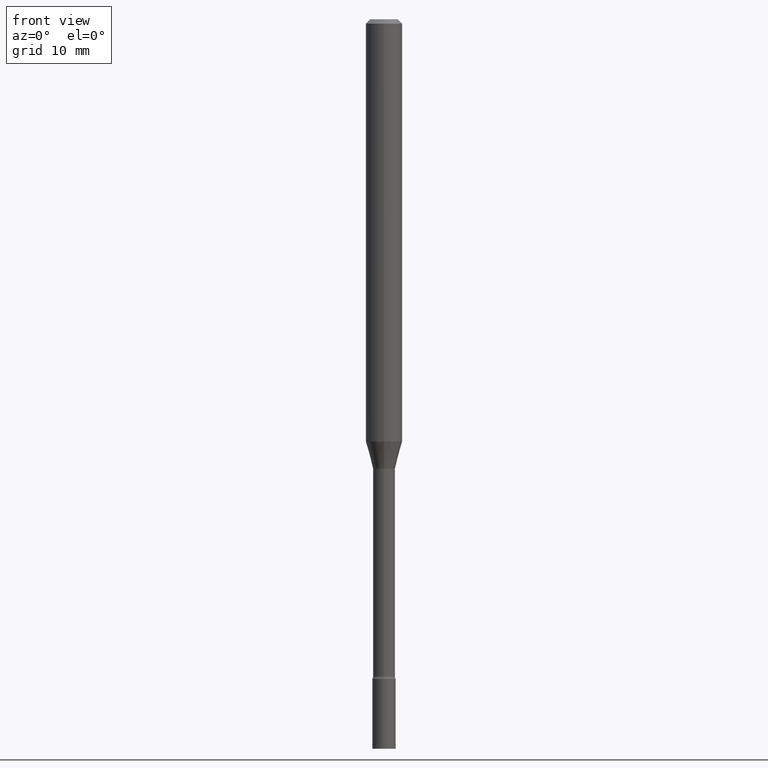
[diagram: clean part render]
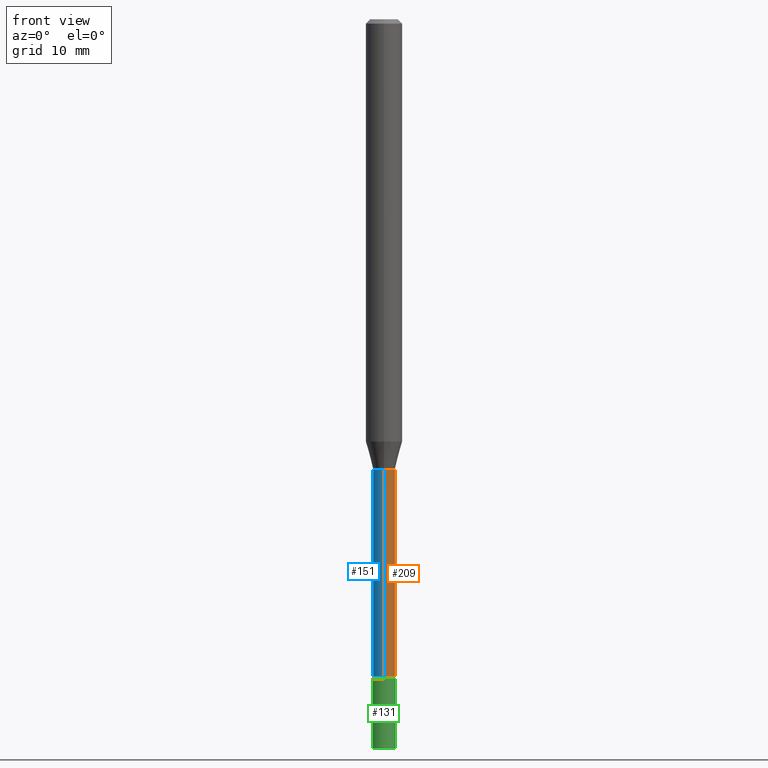
[diagram: same view with three faces highlighted in distinct colors, each labeled with its STEP entity id]
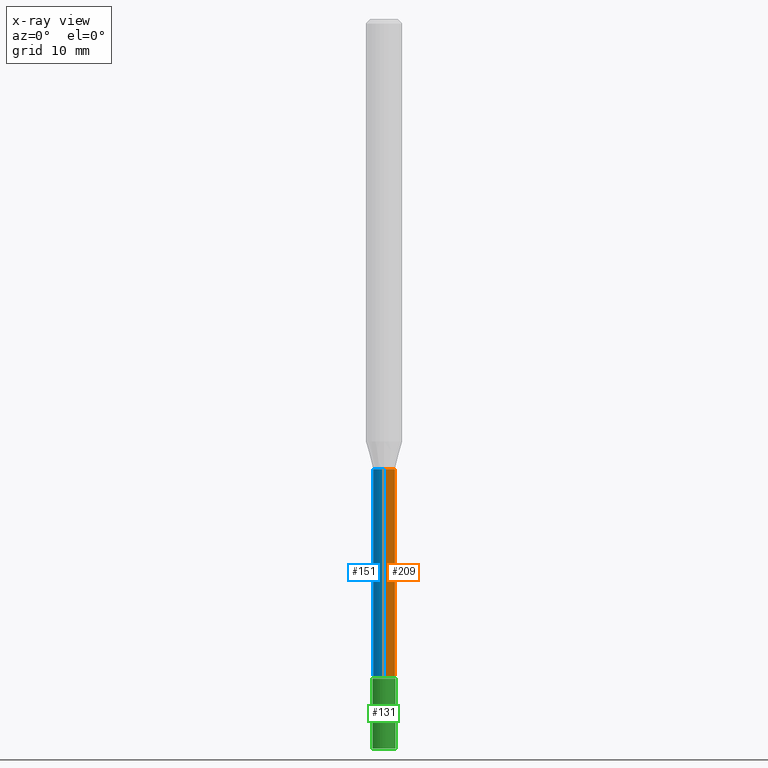
[diagram: x-ray of the same camera — body ghosted, the three highlighted faces saturated]
A machine part, front view with three faces highlighted in distinct colors.
The next image is the same camera in x-ray (body ghosted, the three faces saturated) — at least one of them is partly hidden behind the body in this view.
Their STEP definitions:

[orange] entity #209 — the highlighted cylindrical surface (edge-blend (fillet) strip) has radius 0.955 mm, axis along (-0, 0, 1).
#20 = CARTESIAN_POINT ( 'NONE',  ( -2.625593966809491224E-16, -0.03760000000000795345, -2.251861204020249918 ) ) ;
#37 = CARTESIAN_POINT ( 'NONE',  ( 2.671640686458530486E-16, 0.03759999999999462383, -1.541974787463810781 ) ) ;
#69 = VERTEX_POINT ( 'NONE', #355 ) ;
#91 = CYLINDRICAL_SURFACE ( 'NONE', #298, 0.03760000000000005005 ) ;
#97 = LINE ( 'NONE', #299, #120 ) ;
#104 = AXIS2_PLACEMENT_3D ( 'NONE', #384, #314, #344 ) ;
#112 = VERTEX_POINT ( 'NONE', #121 ) ;
#120 = VECTOR ( 'NONE', #466, 39.37007874015748143 ) ;
#121 = CARTESIAN_POINT ( 'NONE',  ( 2.756905814749742978E-16, 0.03759999999999222992, -2.251861204020249918 ) ) ;
#123 = DIRECTION ( 'NONE',  ( -2.445478384323493564E-29, 3.491467622403864625E-15, 1.000000000000000000 ) ) ;
#130 = EDGE_LOOP ( 'NONE', ( #413, #149, #256, #180 ) ) ;
#138 = DIRECTION ( 'NONE',  ( -2.445478384323493564E-29, 3.491467622403864625E-15, 1.000000000000000000 ) ) ;
#149 = ORIENTED_EDGE ( 'NONE', *, *, #174, .T. ) ;
#174 = EDGE_CURVE ( 'NONE', #112, #500, #290, .T. ) ;
#177 = CIRCLE ( 'NONE', #281, 0.03760000000000000148 ) ;
#180 = ORIENTED_EDGE ( 'NONE', *, *, #437, .F. ) ;
#209 = ADVANCED_FACE ( 'NONE', ( #450 ), #91, .T. ) ;
#213 = VECTOR ( 'NONE', #123, 39.37007874015748143 ) ;
#256 = ORIENTED_EDGE ( 'NONE', *, *, #356, .F. ) ;
#259 = CARTESIAN_POINT ( 'NONE',  ( 2.671640686457979762E-16, 0.03760000000000005005, -1.312791826023854775E-16 ) ) ;
#281 = AXIS2_PLACEMENT_3D ( 'NONE', #459, #138, #493 ) ;
#290 = LINE ( 'NONE', #259, #213 ) ;
#291 = EDGE_CURVE ( 'NONE', #429, #112, #431, .T. ) ;
#298 = AXIS2_PLACEMENT_3D ( 'NONE', #490, #334, #489 ) ;
#299 = CARTESIAN_POINT ( 'NONE',  ( -2.625593966810039482E-16, -0.03760000000000005005, 1.312791826023854775E-16 ) ) ;
#314 = DIRECTION ( 'NONE',  ( -2.445478384323493564E-29, 3.491467622403864625E-15, 1.000000000000000000 ) ) ;
#334 = DIRECTION ( 'NONE',  ( -2.445478384323493564E-29, 3.491467622403864625E-15, 1.000000000000000000 ) ) ;
#344 = DIRECTION ( 'NONE',  ( -6.982962677686265133E-15, -1.000000000000000000, 0.000000000000000000 ) ) ;
#355 = CARTESIAN_POINT ( 'NONE',  ( -2.625593966809658857E-16, -0.03760000000000538606, -1.541974787463810781 ) ) ;
#356 = EDGE_CURVE ( 'NONE', #69, #500, #177, .T. ) ;
#384 = CARTESIAN_POINT ( 'NONE',  ( 5.506877898928198325E-29, -7.862300483984086677E-15, -2.251861204020249918 ) ) ;
#413 = ORIENTED_EDGE ( 'NONE', *, *, #291, .T. ) ;
#429 = VERTEX_POINT ( 'NONE', #20 ) ;
#431 = CIRCLE ( 'NONE', #104, 0.03760000000000009168 ) ;
#437 = EDGE_CURVE ( 'NONE', #429, #69, #97, .T. ) ;
#450 = FACE_OUTER_BOUND ( 'NONE', #130, .T. ) ;
#459 = CARTESIAN_POINT ( 'NONE',  ( 3.770866011914561974E-29, -5.383755044992975831E-15, -1.541974787463810781 ) ) ;
#466 = DIRECTION ( 'NONE',  ( -2.445478384323493564E-29, 3.491467622403864625E-15, 1.000000000000000000 ) ) ;
#489 = DIRECTION ( 'NONE',  ( -6.982962677686265922E-15, -1.000000000000000000, 3.491467622403864625E-15 ) ) ;
#490 = CARTESIAN_POINT ( 'NONE',  ( 0.000000000000000000, 0.000000000000000000, 0.000000000000000000 ) ) ;
#493 = DIRECTION ( 'NONE',  ( -6.982962677686265922E-15, -1.000000000000000000, 0.000000000000000000 ) ) ;
#500 = VERTEX_POINT ( 'NONE', #37 ) ;

[blue] entity #151 — the highlighted cylindrical surface (edge-blend (fillet) strip) has radius 0.955 mm, axis along (-0, 0, 1).
#13 = CYLINDRICAL_SURFACE ( 'NONE', #507, 0.03760000000000005005 ) ;
#20 = CARTESIAN_POINT ( 'NONE',  ( -2.625593966809491224E-16, -0.03760000000000795345, -2.251861204020249918 ) ) ;
#22 = ORIENTED_EDGE ( 'NONE', *, *, #174, .F. ) ;
#37 = CARTESIAN_POINT ( 'NONE',  ( 2.671640686458530486E-16, 0.03759999999999462383, -1.541974787463810781 ) ) ;
#69 = VERTEX_POINT ( 'NONE', #355 ) ;
#83 = ORIENTED_EDGE ( 'NONE', *, *, #193, .T. ) ;
#86 = DIRECTION ( 'NONE',  ( -2.445478384323493564E-29, 3.491467622403864625E-15, 1.000000000000000000 ) ) ;
#93 = FACE_OUTER_BOUND ( 'NONE', #208, .T. ) ;
#97 = LINE ( 'NONE', #299, #120 ) ;
#112 = VERTEX_POINT ( 'NONE', #121 ) ;
#120 = VECTOR ( 'NONE', #466, 39.37007874015748143 ) ;
#121 = CARTESIAN_POINT ( 'NONE',  ( 2.756905814749742978E-16, 0.03759999999999222992, -2.251861204020249918 ) ) ;
#123 = DIRECTION ( 'NONE',  ( -2.445478384323493564E-29, 3.491467622403864625E-15, 1.000000000000000000 ) ) ;
#124 = CARTESIAN_POINT ( 'NONE',  ( 0.000000000000000000, 0.000000000000000000, 0.000000000000000000 ) ) ;
#151 = ADVANCED_FACE ( 'NONE', ( #93 ), #13, .T. ) ;
#170 = DIRECTION ( 'NONE',  ( -6.982962677686265922E-15, -1.000000000000000000, 3.491467622403864625E-15 ) ) ;
#174 = EDGE_CURVE ( 'NONE', #112, #500, #290, .T. ) ;
#193 = EDGE_CURVE ( 'NONE', #112, #429, #310, .T. ) ;
#196 = AXIS2_PLACEMENT_3D ( 'NONE', #371, #219, #289 ) ;
#208 = EDGE_LOOP ( 'NONE', ( #22, #83, #263, #400 ) ) ;
#213 = VECTOR ( 'NONE', #123, 39.37007874015748143 ) ;
#219 = DIRECTION ( 'NONE',  ( -2.445478384323493564E-29, 3.491467622403864625E-15, 1.000000000000000000 ) ) ;
#243 = EDGE_CURVE ( 'NONE', #500, #69, #399, .T. ) ;
#259 = CARTESIAN_POINT ( 'NONE',  ( 2.671640686457979762E-16, 0.03760000000000005005, -1.312791826023854775E-16 ) ) ;
#263 = ORIENTED_EDGE ( 'NONE', *, *, #437, .T. ) ;
#289 = DIRECTION ( 'NONE',  ( -6.982962677686265922E-15, -1.000000000000000000, 0.000000000000000000 ) ) ;
#290 = LINE ( 'NONE', #259, #213 ) ;
#294 = CARTESIAN_POINT ( 'NONE',  ( 5.506877898928198325E-29, -7.862300483984086677E-15, -2.251861204020249918 ) ) ;
#299 = CARTESIAN_POINT ( 'NONE',  ( -2.625593966810039482E-16, -0.03760000000000005005, 1.312791826023854775E-16 ) ) ;
#310 = CIRCLE ( 'NONE', #510, 0.03760000000000009168 ) ;
#337 = DIRECTION ( 'NONE',  ( -6.982962677686265133E-15, -1.000000000000000000, 0.000000000000000000 ) ) ;
#355 = CARTESIAN_POINT ( 'NONE',  ( -2.625593966809658857E-16, -0.03760000000000538606, -1.541974787463810781 ) ) ;
#371 = CARTESIAN_POINT ( 'NONE',  ( 3.770866011914561974E-29, -5.383755044992975831E-15, -1.541974787463810781 ) ) ;
#399 = CIRCLE ( 'NONE', #196, 0.03760000000000000148 ) ;
#400 = ORIENTED_EDGE ( 'NONE', *, *, #243, .F. ) ;
#409 = DIRECTION ( 'NONE',  ( -2.445478384323493564E-29, 3.491467622403864625E-15, 1.000000000000000000 ) ) ;
#429 = VERTEX_POINT ( 'NONE', #20 ) ;
#437 = EDGE_CURVE ( 'NONE', #429, #69, #97, .T. ) ;
#466 = DIRECTION ( 'NONE',  ( -2.445478384323493564E-29, 3.491467622403864625E-15, 1.000000000000000000 ) ) ;
#500 = VERTEX_POINT ( 'NONE', #37 ) ;
#507 = AXIS2_PLACEMENT_3D ( 'NONE', #124, #86, #170 ) ;
#510 = AXIS2_PLACEMENT_3D ( 'NONE', #294, #409, #337 ) ;

[green] entity #131 — the highlighted cylindrical surface (edge-blend (fillet) strip) has radius 1.016 mm, axis along (-0, 0, 1).
#51 = CARTESIAN_POINT ( 'NONE',  ( 0.000000000000000000, 0.000000000000000000, 0.000000000000000000 ) ) ;
#57 = VERTEX_POINT ( 'NONE', #158 ) ;
#59 = EDGE_CURVE ( 'NONE', #382, #92, #195, .T. ) ;
#60 = CARTESIAN_POINT ( 'NONE',  ( 0.04000000000000000083, -2.793185071074506290E-16, 1.950470710318374387E-30 ) ) ;
#66 = DIRECTION ( 'NONE',  ( -2.445468806185136597E-29, 3.491481338843145583E-15, 1.000000000000000000 ) ) ;
#92 = VERTEX_POINT ( 'NONE', #159 ) ;
#96 = DIRECTION ( 'NONE',  ( -2.445468806185136597E-29, 3.491481338843145583E-15, 1.000000000000000000 ) ) ;
#100 = VERTEX_POINT ( 'NONE', #327 ) ;
#131 = ADVANCED_FACE ( 'NONE', ( #406 ), #207, .T. ) ;
#145 = AXIS2_PLACEMENT_3D ( 'NONE', #51, #96, #367 ) ;
#148 = LINE ( 'NONE', #223, #153 ) ;
#153 = VECTOR ( 'NONE', #414, 39.37007874015748143 ) ;
#158 = CARTESIAN_POINT ( 'NONE',  ( 0.04000000000000000083, -9.008021854215314980E-15, -2.500000000000000000 ) ) ;
#159 = CARTESIAN_POINT ( 'NONE',  ( 0.04000000000000000083, -8.170066332892960135E-15, -2.260000000000000231 ) ) ;
#166 = VECTOR ( 'NONE', #499, 39.37007874015748143 ) ;
#169 = ORIENTED_EDGE ( 'NONE', *, *, #335, .T. ) ;
#195 = CIRCLE ( 'NONE', #212, 0.04000000000000000083 ) ;
#198 = CARTESIAN_POINT ( 'NONE',  ( 5.526759501978408888E-29, -7.890747825785510097E-15, -2.260000000000000231 ) ) ;
#207 = CYLINDRICAL_SURFACE ( 'NONE', #145, 0.04000000000000000083 ) ;
#212 = AXIS2_PLACEMENT_3D ( 'NONE', #198, #325, #363 ) ;
#223 = CARTESIAN_POINT ( 'NONE',  ( -0.04000000000000000083, 2.842170943040400803E-16, -1.967574036101962509E-30 ) ) ;
#261 = EDGE_LOOP ( 'NONE', ( #269, #169, #501, #410 ) ) ;
#267 = CARTESIAN_POINT ( 'NONE',  ( 6.113672015462842613E-29, -8.728703347107864943E-15, -2.500000000000000000 ) ) ;
#269 = ORIENTED_EDGE ( 'NONE', *, *, #285, .F. ) ;
#280 = EDGE_CURVE ( 'NONE', #57, #92, #339, .T. ) ;
#285 = EDGE_CURVE ( 'NONE', #100, #382, #148, .T. ) ;
#325 = DIRECTION ( 'NONE',  ( -2.445468806185136597E-29, 3.491481338843145583E-15, 1.000000000000000000 ) ) ;
#327 = CARTESIAN_POINT ( 'NONE',  ( -0.04000000000000000083, -8.025508492142646404E-15, -2.500000000000000000 ) ) ;
#335 = EDGE_CURVE ( 'NONE', #100, #57, #495, .T. ) ;
#339 = LINE ( 'NONE', #60, #166 ) ;
#363 = DIRECTION ( 'NONE',  ( 1.000000000000000000, -6.982962677686259611E-15, 0.000000000000000000 ) ) ;
#367 = DIRECTION ( 'NONE',  ( 1.000000000000000000, -6.982962677686265922E-15, 4.876176775795935793E-29 ) ) ;
#382 = VERTEX_POINT ( 'NONE', #427 ) ;
#406 = FACE_OUTER_BOUND ( 'NONE', #261, .T. ) ;
#410 = ORIENTED_EDGE ( 'NONE', *, *, #59, .F. ) ;
#414 = DIRECTION ( 'NONE',  ( -2.445468806185136877E-29, 3.491481338843145188E-15, 1.000000000000000000 ) ) ;
#427 = CARTESIAN_POINT ( 'NONE',  ( -0.04000000000000000083, -8.025508492142646404E-15, -2.260000000000000231 ) ) ;
#468 = DIRECTION ( 'NONE',  ( 1.000000000000000000, -6.982962677686259611E-15, 0.000000000000000000 ) ) ;
#495 = CIRCLE ( 'NONE', #519, 0.04000000000000000083 ) ;
#499 = DIRECTION ( 'NONE',  ( -2.445468806185136877E-29, 3.491481338843145188E-15, 1.000000000000000000 ) ) ;
#501 = ORIENTED_EDGE ( 'NONE', *, *, #280, .T. ) ;
#519 = AXIS2_PLACEMENT_3D ( 'NONE', #267, #66, #468 ) ;